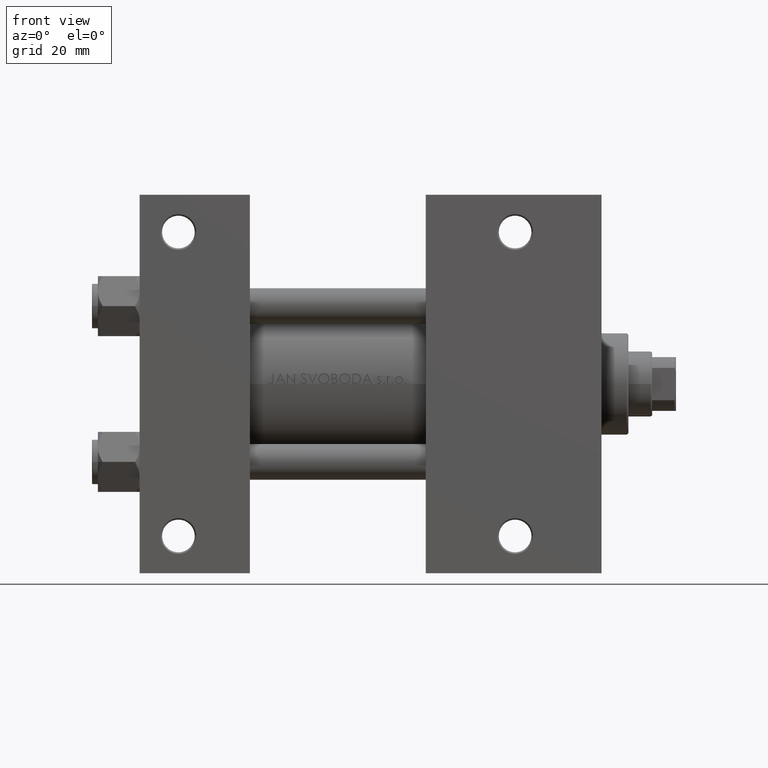
[diagram: clean part render]
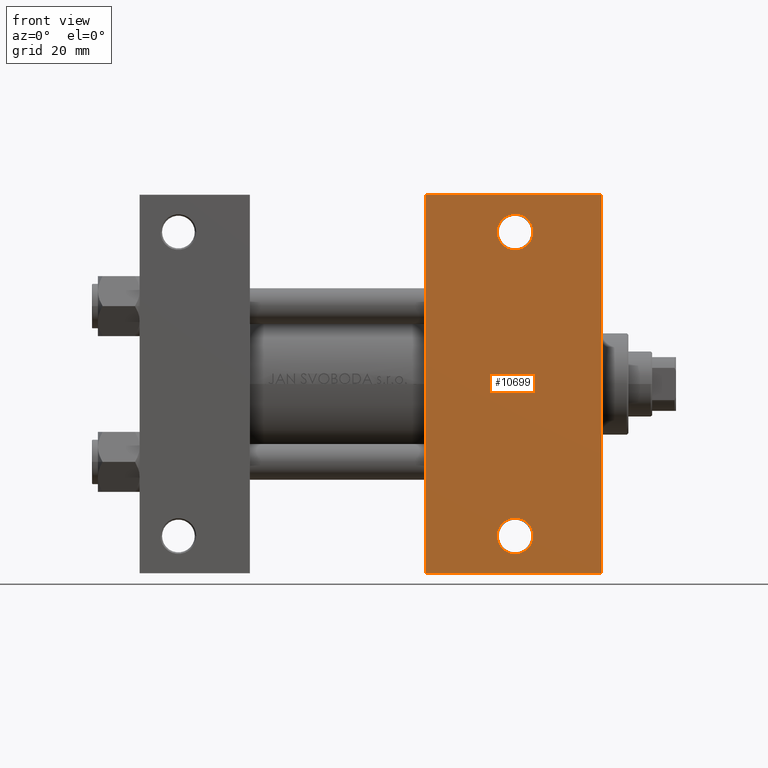
[diagram: same view with one face highlighted and labeled with its STEP entity id]
A machine part, front view. The second image highlights one B-rep face of the part: STEP entity #10699.
In plain terms, the highlighted planar face has unit normal (0, -1, 0).
Its self-contained STEP definition (entity closure, byte-faithful):
#170 = EDGE_CURVE ( 'NONE', #36102, #14870, #45805, .T. ) ;
#292 = CIRCLE ( 'NONE', #27367, 5.999499999999962974 ) ;
#674 = VERTEX_POINT ( 'NONE', #39224 ) ;
#2106 = DIRECTION ( 'NONE',  ( -1.000000000000000000, 0.000000000000000000, 0.000000000000000000 ) ) ;
#2531 = DIRECTION ( 'NONE',  ( -0.000000000000000000, -0.000000000000000000, 1.000000000000000000 ) ) ;
#2611 = EDGE_LOOP ( 'NONE', ( #23996, #12489, #40181, #5641 ) ) ;
#2875 = CARTESIAN_POINT ( 'NONE',  ( 131.9994999999999550, -51.00000000000000711, -37.50000000000000000 ) ) ;
#2916 = PLANE ( 'NONE',  #37298 ) ;
#3969 = EDGE_CURVE ( 'NONE', #16671, #36370, #48747, .T. ) ;
#4169 = ORIENTED_EDGE ( 'NONE', *, *, #16847, .T. ) ;
#4617 = AXIS2_PLACEMENT_3D ( 'NONE', #46702, #6591, #2106 ) ;
#5155 = LINE ( 'NONE', #42770, #15316 ) ;
#5404 = DIRECTION ( 'NONE',  ( 0.000000000000000000, -1.000000000000000000, 0.000000000000000000 ) ) ;
#5641 = ORIENTED_EDGE ( 'NONE', *, *, #3969, .T. ) ;
#5945 = CARTESIAN_POINT ( 'NONE',  ( 95.99999999999998579, -63.50000000000000000, -37.50000000000000000 ) ) ;
#6446 = EDGE_LOOP ( 'NONE', ( #4169, #38985 ) ) ;
#6591 = DIRECTION ( 'NONE',  ( -0.000000000000000000, -0.000000000000000000, 1.000000000000000000 ) ) ;
#8569 = CIRCLE ( 'NONE', #4617, 5.999499999999962974 ) ;
#10699 = ADVANCED_FACE ( 'NONE', ( #26064, #17624, #18116 ), #2916, .T. ) ;
#11757 = CARTESIAN_POINT ( 'NONE',  ( 126.0000000000000000, -51.00000000000000711, -37.50000000000000000 ) ) ;
#12215 = CARTESIAN_POINT ( 'NONE',  ( 120.0005000000000166, 51.00000000000000000, -37.50000000000000000 ) ) ;
#12489 = ORIENTED_EDGE ( 'NONE', *, *, #26521, .T. ) ;
#14385 = DIRECTION ( 'NONE',  ( 0.000000000000000000, 0.000000000000000000, -1.000000000000000000 ) ) ;
#14817 = AXIS2_PLACEMENT_3D ( 'NONE', #33644, #2531, #14972 ) ;
#14870 = VERTEX_POINT ( 'NONE', #47835 ) ;
#14972 = DIRECTION ( 'NONE',  ( -1.000000000000000000, 0.000000000000000000, 0.000000000000000000 ) ) ;
#15316 = VECTOR ( 'NONE', #5404, 1000.000000000000000 ) ;
#15687 = VERTEX_POINT ( 'NONE', #12215 ) ;
#16059 = DIRECTION ( 'NONE',  ( -1.000000000000000000, 0.000000000000000000, 0.000000000000000000 ) ) ;
#16268 = LINE ( 'NONE', #24707, #41567 ) ;
#16671 = VERTEX_POINT ( 'NONE', #28459 ) ;
#16847 = EDGE_CURVE ( 'NONE', #14870, #36102, #37003, .T. ) ;
#17560 = DIRECTION ( 'NONE',  ( 1.000000000000000000, 0.000000000000000000, 0.000000000000000000 ) ) ;
#17624 = FACE_BOUND ( 'NONE', #6446, .T. ) ;
#18116 = FACE_OUTER_BOUND ( 'NONE', #2611, .T. ) ;
#21786 = LINE ( 'NONE', #36485, #41970 ) ;
#22089 = DIRECTION ( 'NONE',  ( -1.000000000000000000, 0.000000000000000000, -0.000000000000000000 ) ) ;
#22225 = VERTEX_POINT ( 'NONE', #41181 ) ;
#22956 = EDGE_CURVE ( 'NONE', #15687, #22225, #8569, .T. ) ;
#23996 = ORIENTED_EDGE ( 'NONE', *, *, #37380, .F. ) ;
#24484 = VECTOR ( 'NONE', #48027, 1000.000000000000000 ) ;
#24707 = CARTESIAN_POINT ( 'NONE',  ( 155.0000000000000000, 37.50000000000000000, -37.50000000000000000 ) ) ;
#26064 = FACE_BOUND ( 'NONE', #31062, .T. ) ;
#26521 = EDGE_CURVE ( 'NONE', #31906, #674, #21786, .T. ) ;
#27367 = AXIS2_PLACEMENT_3D ( 'NONE', #31009, #46184, #16059 ) ;
#28459 = CARTESIAN_POINT ( 'NONE',  ( 154.9999999999999716, -63.50000000000002842, -37.50000000000000000 ) ) ;
#31009 = CARTESIAN_POINT ( 'NONE',  ( 125.9999999999999716, 51.00000000000000000, -37.50000000000000000 ) ) ;
#31062 = EDGE_LOOP ( 'NONE', ( #34507, #35449 ) ) ;
#31455 = DIRECTION ( 'NONE',  ( 0.000000000000000000, -1.000000000000000000, 0.000000000000000000 ) ) ;
#31906 = VERTEX_POINT ( 'NONE', #39289 ) ;
#33644 = CARTESIAN_POINT ( 'NONE',  ( 126.0000000000000000, -51.00000000000000711, -37.50000000000000000 ) ) ;
#34507 = ORIENTED_EDGE ( 'NONE', *, *, #22956, .T. ) ;
#35449 = ORIENTED_EDGE ( 'NONE', *, *, #48559, .T. ) ;
#36102 = VERTEX_POINT ( 'NONE', #2875 ) ;
#36370 = VERTEX_POINT ( 'NONE', #46923 ) ;
#36485 = CARTESIAN_POINT ( 'NONE',  ( 96.00000000000000000, 63.50000000000000000, -37.50000000000000000 ) ) ;
#37003 = CIRCLE ( 'NONE', #38583, 5.999499999999962974 ) ;
#37298 = AXIS2_PLACEMENT_3D ( 'NONE', #48488, #14385, #22089 ) ;
#37380 = EDGE_CURVE ( 'NONE', #31906, #36370, #5155, .T. ) ;
#37880 = DIRECTION ( 'NONE',  ( -1.000000000000000000, 0.000000000000000000, 0.000000000000000000 ) ) ;
#38583 = AXIS2_PLACEMENT_3D ( 'NONE', #11757, #41858, #37880 ) ;
#38985 = ORIENTED_EDGE ( 'NONE', *, *, #170, .T. ) ;
#39224 = CARTESIAN_POINT ( 'NONE',  ( 155.0000000000000000, 63.50000000000000000, -37.50000000000000000 ) ) ;
#39289 = CARTESIAN_POINT ( 'NONE',  ( 96.00000000000000000, 63.50000000000000000, -37.50000000000000000 ) ) ;
#40181 = ORIENTED_EDGE ( 'NONE', *, *, #46315, .T. ) ;
#41181 = CARTESIAN_POINT ( 'NONE',  ( 131.9994999999999266, 51.00000000000000000, -37.50000000000000000 ) ) ;
#41567 = VECTOR ( 'NONE', #31455, 1000.000000000000000 ) ;
#41858 = DIRECTION ( 'NONE',  ( -0.000000000000000000, -0.000000000000000000, 1.000000000000000000 ) ) ;
#41970 = VECTOR ( 'NONE', #17560, 1000.000000000000000 ) ;
#42770 = CARTESIAN_POINT ( 'NONE',  ( 96.00000000000000000, 37.50000000000000000, -37.50000000000000000 ) ) ;
#45805 = CIRCLE ( 'NONE', #14817, 5.999499999999962974 ) ;
#46184 = DIRECTION ( 'NONE',  ( -0.000000000000000000, -0.000000000000000000, 1.000000000000000000 ) ) ;
#46315 = EDGE_CURVE ( 'NONE', #674, #16671, #16268, .T. ) ;
#46702 = CARTESIAN_POINT ( 'NONE',  ( 125.9999999999999716, 51.00000000000000000, -37.50000000000000000 ) ) ;
#46923 = CARTESIAN_POINT ( 'NONE',  ( 95.99999999999998579, -63.50000000000000000, -37.50000000000000000 ) ) ;
#47835 = CARTESIAN_POINT ( 'NONE',  ( 120.0005000000000308, -51.00000000000000711, -37.50000000000000000 ) ) ;
#48027 = DIRECTION ( 'NONE',  ( -1.000000000000000000, 4.704334850106596780E-16, -0.000000000000000000 ) ) ;
#48488 = CARTESIAN_POINT ( 'NONE',  ( 155.0000000000000000, 37.50000000000000000, -37.50000000000000000 ) ) ;
#48559 = EDGE_CURVE ( 'NONE', #22225, #15687, #292, .T. ) ;
#48747 = LINE ( 'NONE', #5945, #24484 ) ;